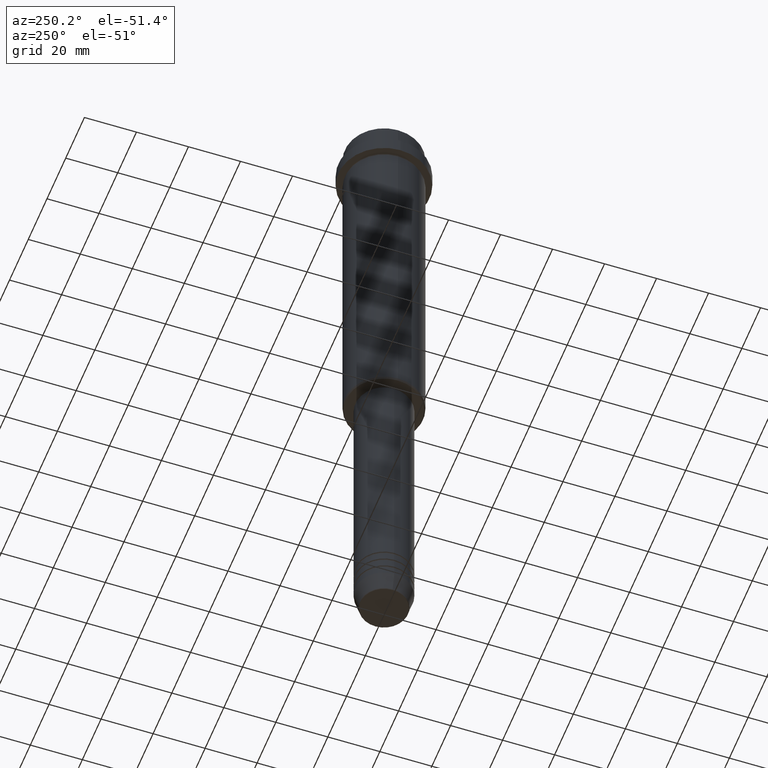
[diagram: clean part render]
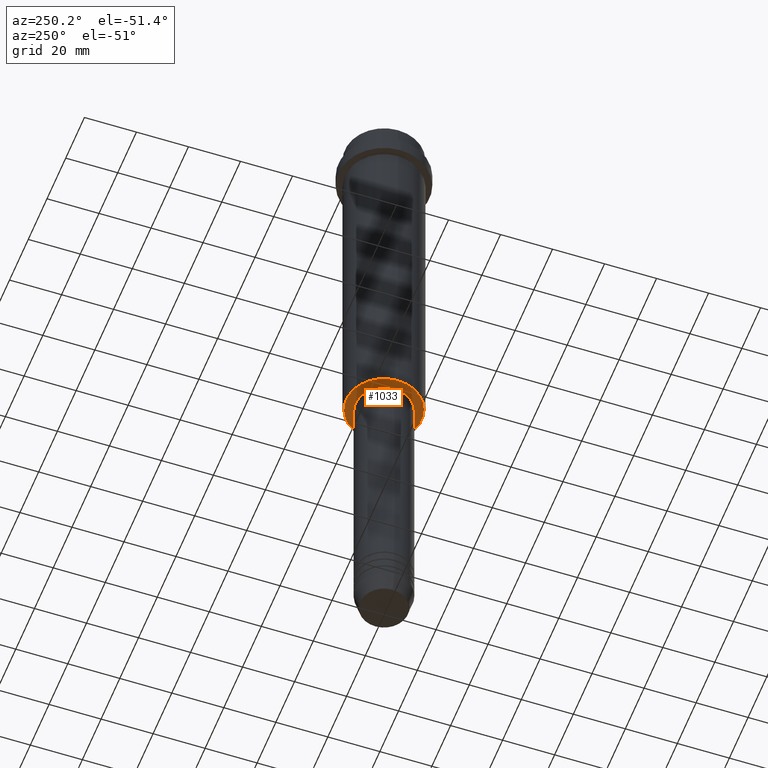
[diagram: same view with one face highlighted and labeled with its STEP entity id]
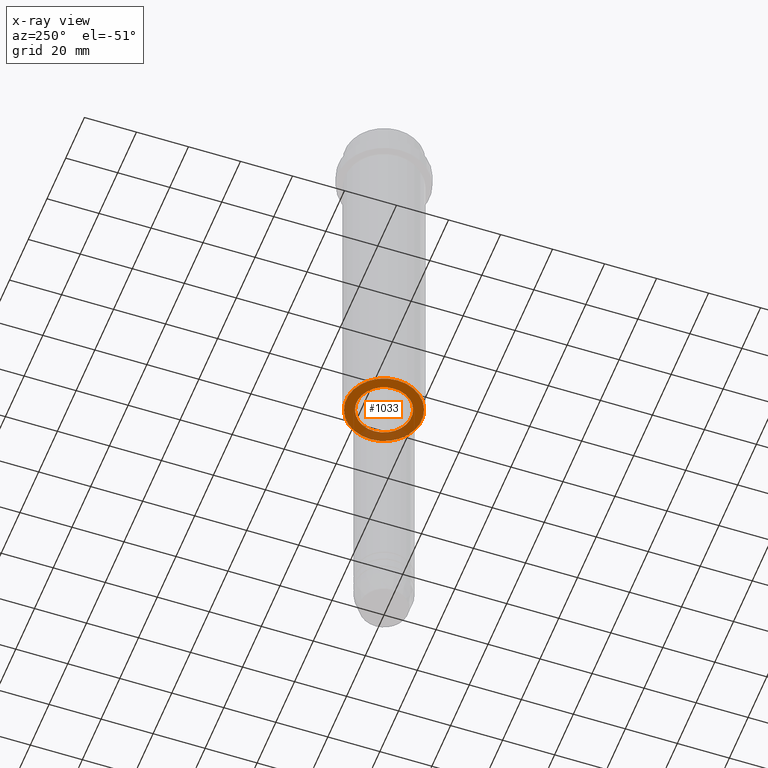
[diagram: x-ray of the same camera — body ghosted, the highlighted face saturated]
A machine part, auxiliary view. The second image highlights one B-rep face of the part: STEP entity #1033.
The next image is the same camera in x-ray: the body ghosted, the highlighted face saturated — about 21% of this face is hidden behind the body in this view.
In plain terms, the highlighted planar face has unit normal (0, 0, -1).
Its self-contained STEP definition (entity closure, byte-faithful):
#20 = ORIENTED_EDGE ( 'NONE', *, *, #904, .T. ) ;
#68 = DIRECTION ( 'NONE',  ( -1.000000000000000000, 0.000000000000000000, 0.000000000000000000 ) ) ;
#73 = AXIS2_PLACEMENT_3D ( 'NONE', #1076, #754, #110 ) ;
#97 = CARTESIAN_POINT ( 'NONE',  ( 14.50000000000001066, 0.000000000000000000, -145.0000000000000284 ) ) ;
#110 = DIRECTION ( 'NONE',  ( 1.000000000000000000, 0.000000000000000000, 0.000000000000000000 ) ) ;
#207 = CARTESIAN_POINT ( 'NONE',  ( 0.000000000000000000, 0.000000000000000000, -145.0000000000000284 ) ) ;
#211 = ORIENTED_EDGE ( 'NONE', *, *, #939, .T. ) ;
#303 = DIRECTION ( 'NONE',  ( 0.000000000000000000, 0.000000000000000000, -1.000000000000000000 ) ) ;
#312 = AXIS2_PLACEMENT_3D ( 'NONE', #749, #980, #957 ) ;
#316 = CARTESIAN_POINT ( 'NONE',  ( -14.50000000000001066, 1.806354028742346591E-15, -145.0000000000000284 ) ) ;
#552 = ORIENTED_EDGE ( 'NONE', *, *, #734, .T. ) ;
#559 = EDGE_LOOP ( 'NONE', ( #20, #211 ) ) ;
#603 = CIRCLE ( 'NONE', #795, 14.50000000000001066 ) ;
#612 = DIRECTION ( 'NONE',  ( 1.000000000000000000, 0.000000000000000000, 0.000000000000000000 ) ) ;
#624 = AXIS2_PLACEMENT_3D ( 'NONE', #207, #1239, #612 ) ;
#625 = VERTEX_POINT ( 'NONE', #1409 ) ;
#695 = EDGE_LOOP ( 'NONE', ( #1204, #552 ) ) ;
#734 = EDGE_CURVE ( 'NONE', #625, #1377, #1231, .T. ) ;
#743 = FACE_OUTER_BOUND ( 'NONE', #559, .T. ) ;
#749 = CARTESIAN_POINT ( 'NONE',  ( 0.000000000000000000, 15.00000000000000000, -145.0000000000000284 ) ) ;
#754 = DIRECTION ( 'NONE',  ( -0.000000000000000000, -0.000000000000000000, 1.000000000000000000 ) ) ;
#795 = AXIS2_PLACEMENT_3D ( 'NONE', #946, #1189, #68 ) ;
#862 = CIRCLE ( 'NONE', #73, 10.49999999999999289 ) ;
#904 = EDGE_CURVE ( 'NONE', #913, #1334, #1324, .T. ) ;
#913 = VERTEX_POINT ( 'NONE', #97 ) ;
#939 = EDGE_CURVE ( 'NONE', #1334, #913, #603, .T. ) ;
#946 = CARTESIAN_POINT ( 'NONE',  ( 0.000000000000000000, 0.000000000000000000, -145.0000000000000284 ) ) ;
#957 = DIRECTION ( 'NONE',  ( -1.000000000000000000, 0.000000000000000000, -0.000000000000000000 ) ) ;
#980 = DIRECTION ( 'NONE',  ( 0.000000000000000000, 0.000000000000000000, -1.000000000000000000 ) ) ;
#1033 = ADVANCED_FACE ( 'NONE', ( #743, #1179 ), #1065, .T. ) ;
#1063 = EDGE_CURVE ( 'NONE', #1377, #625, #862, .T. ) ;
#1065 = PLANE ( 'NONE',  #312 ) ;
#1076 = CARTESIAN_POINT ( 'NONE',  ( 0.000000000000000000, 0.000000000000000000, -145.0000000000000284 ) ) ;
#1179 = FACE_BOUND ( 'NONE', #695, .T. ) ;
#1189 = DIRECTION ( 'NONE',  ( 0.000000000000000000, 0.000000000000000000, -1.000000000000000000 ) ) ;
#1204 = ORIENTED_EDGE ( 'NONE', *, *, #1063, .T. ) ;
#1231 = CIRCLE ( 'NONE', #624, 10.49999999999999289 ) ;
#1239 = DIRECTION ( 'NONE',  ( -0.000000000000000000, -0.000000000000000000, 1.000000000000000000 ) ) ;
#1270 = CARTESIAN_POINT ( 'NONE',  ( 0.000000000000000000, 0.000000000000000000, -145.0000000000000284 ) ) ;
#1275 = DIRECTION ( 'NONE',  ( -1.000000000000000000, 0.000000000000000000, 0.000000000000000000 ) ) ;
#1324 = CIRCLE ( 'NONE', #1348, 14.50000000000001066 ) ;
#1334 = VERTEX_POINT ( 'NONE', #316 ) ;
#1348 = AXIS2_PLACEMENT_3D ( 'NONE', #1270, #303, #1275 ) ;
#1377 = VERTEX_POINT ( 'NONE', #1396 ) ;
#1396 = CARTESIAN_POINT ( 'NONE',  ( 10.49999999999999289, 0.000000000000000000, -145.0000000000000284 ) ) ;
#1409 = CARTESIAN_POINT ( 'NONE',  ( -10.49999999999999289, 1.285879139104720042E-15, -145.0000000000000284 ) ) ;